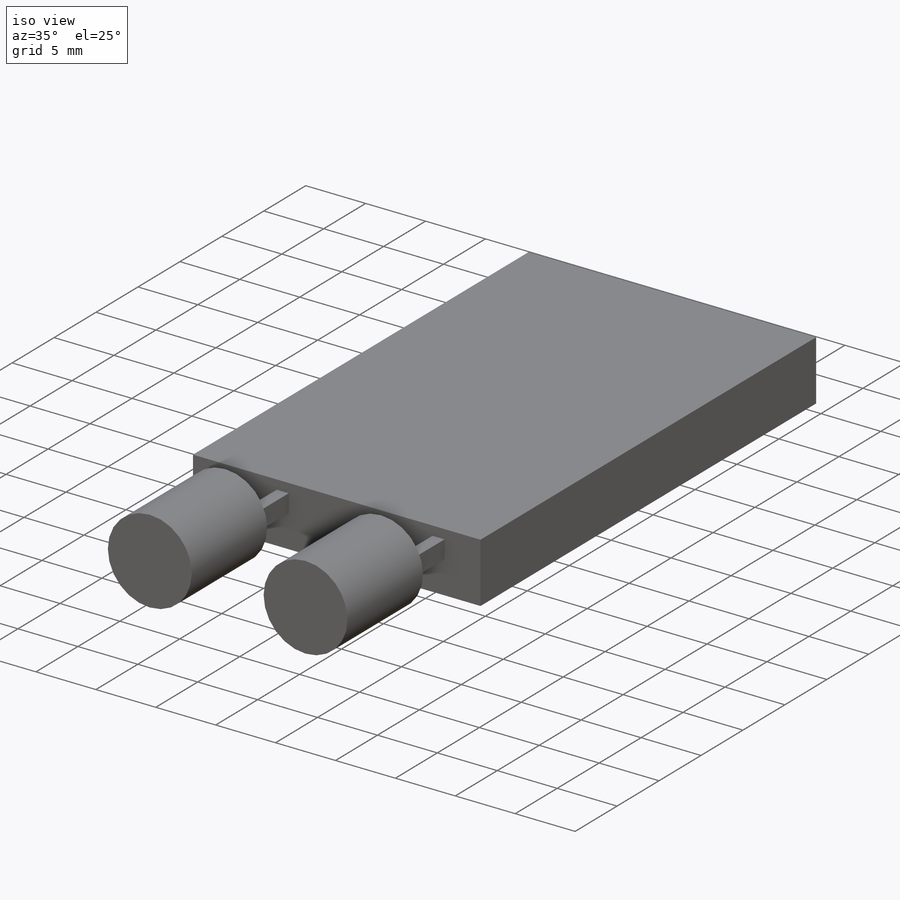
[diagram: iso view]
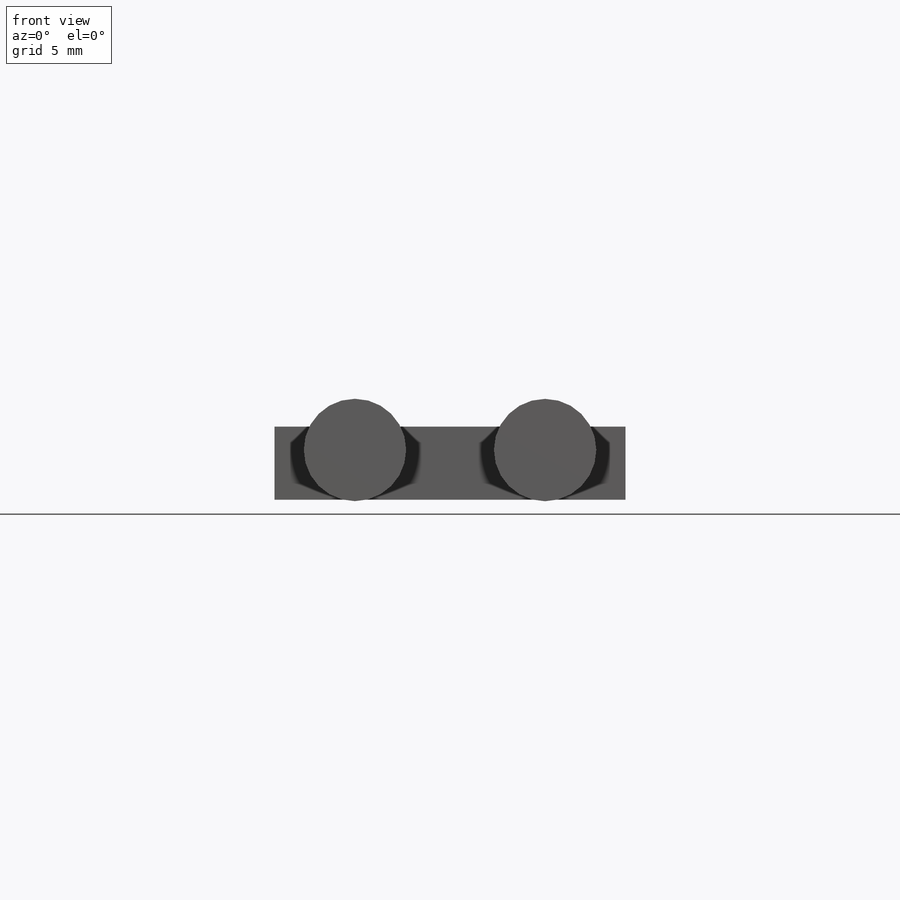
[diagram: front view]
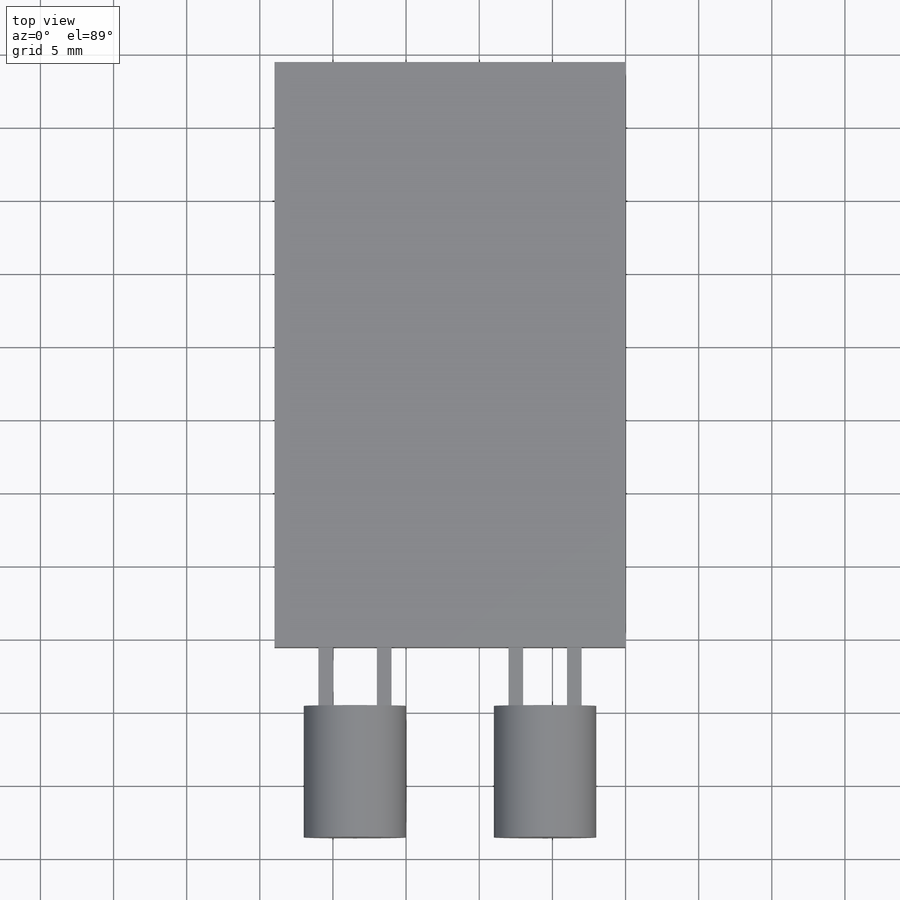
[diagram: top view]
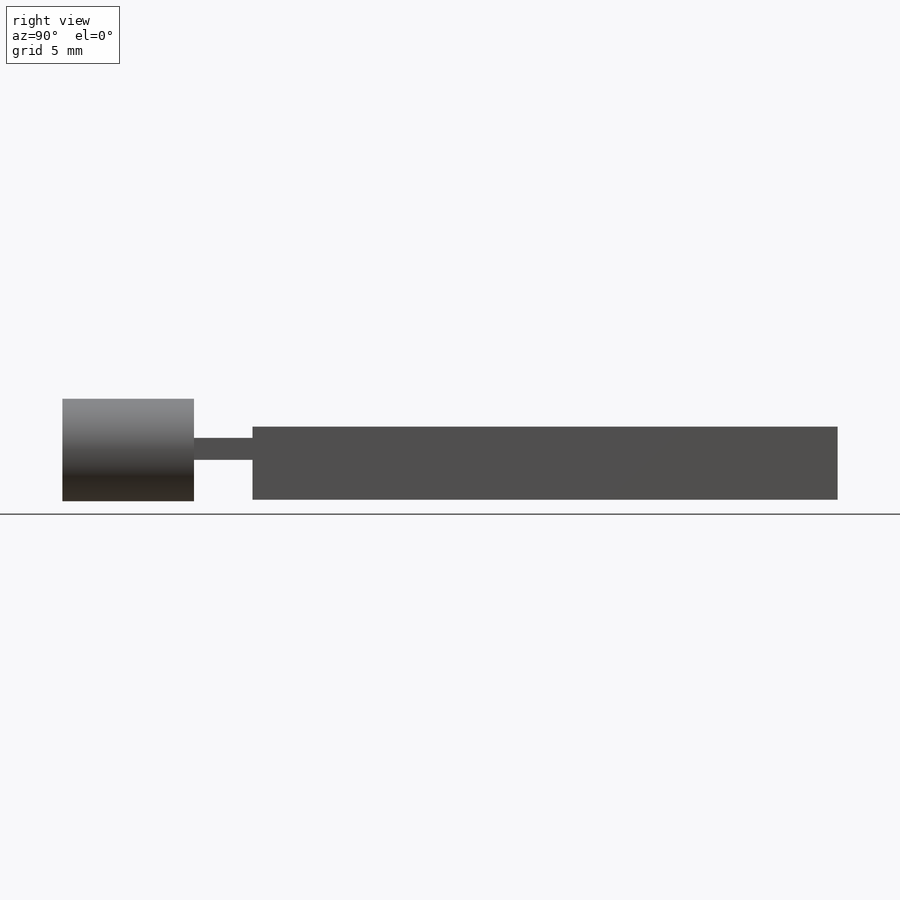
[diagram: right view]
SOLIDWORKS PART (.sldprt)
format: sldprt  version: not decoded by parser v0  size: 213,504 bytes
history: native  units: mm
features: sketch x3, extrude x3, material x1 (+13 scaffold rows collapsed)
feature tree (20):
  scaffold x13  (default folders/planes/origin — collapsed)
  material  "Material <not specified>"
  sketch  "Sketch1"  dims[D1=24.0mm D2=40.0mm]
  extrude  "Boss-Extrude1"  Depth=5mm
  sketch  "Sketch2"  dims[D1=1.0mm D2=1.5mm D3=1.0mm D4=1.5mm D5=3.0mm D6=3.0mm D7=2.0]
  extrude  "Boss-Extrude5"  Depth=44mm
  sketch  "Sketch6"  dims[c1.D1=7.0mm c1.D2=7.0mm c1.D5=7.0mm c1.D3=1.5mm c1.D4=1.5mm c2.D5=~1.593912mm c2.D6=1.6mm]
  extrude  "Boss-Extrude9"  Depth=9mm
decode coverage: 6 of 6 modeling features carry decoded parameters
note: ~ marks probable driven/reference dimensions
note: suppression state not decoded; provenance and decode notes live in map.json
